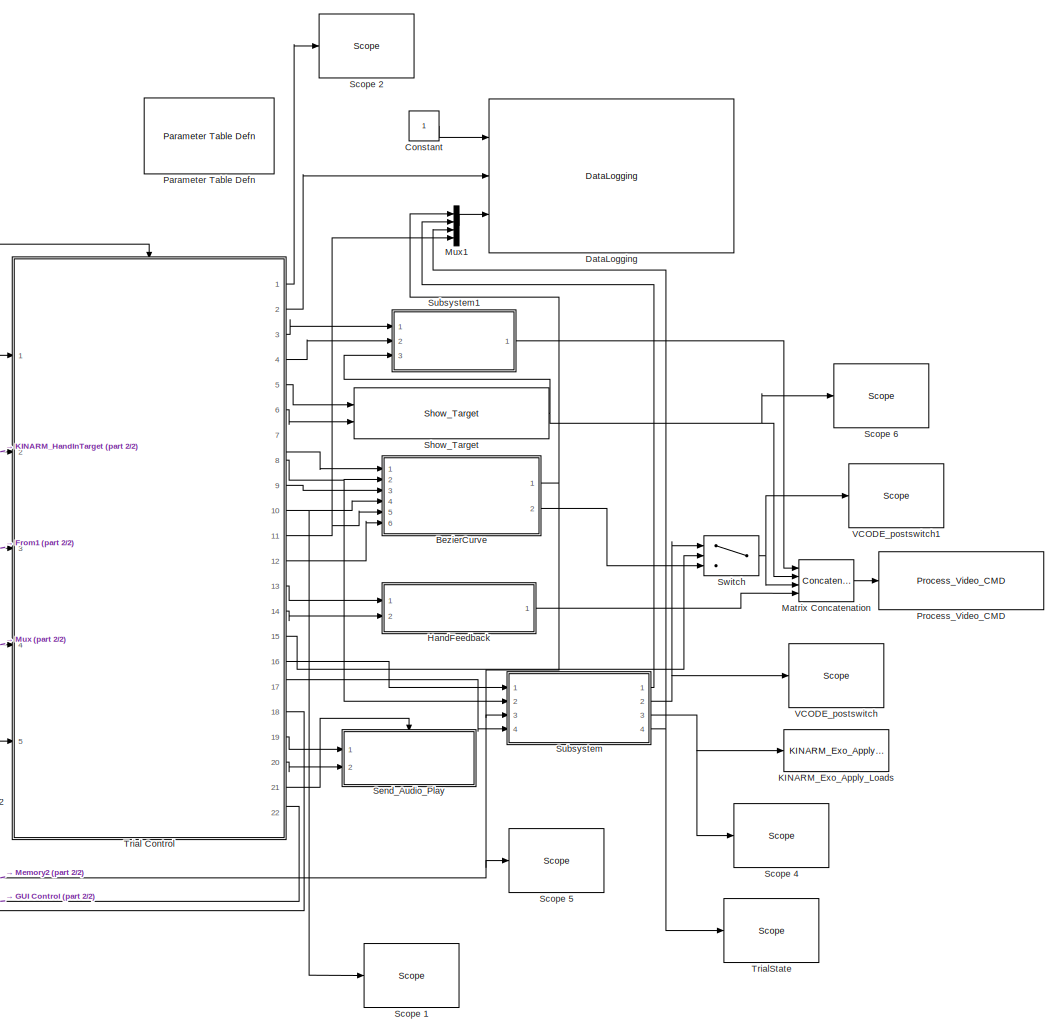
[diagram: root canvas - part 1/2, most of the canvas]
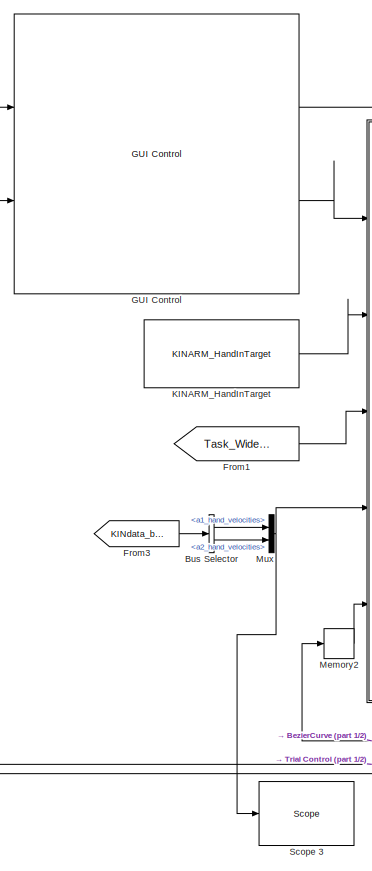
[diagram: root canvas - part 2/2, left side, full height]
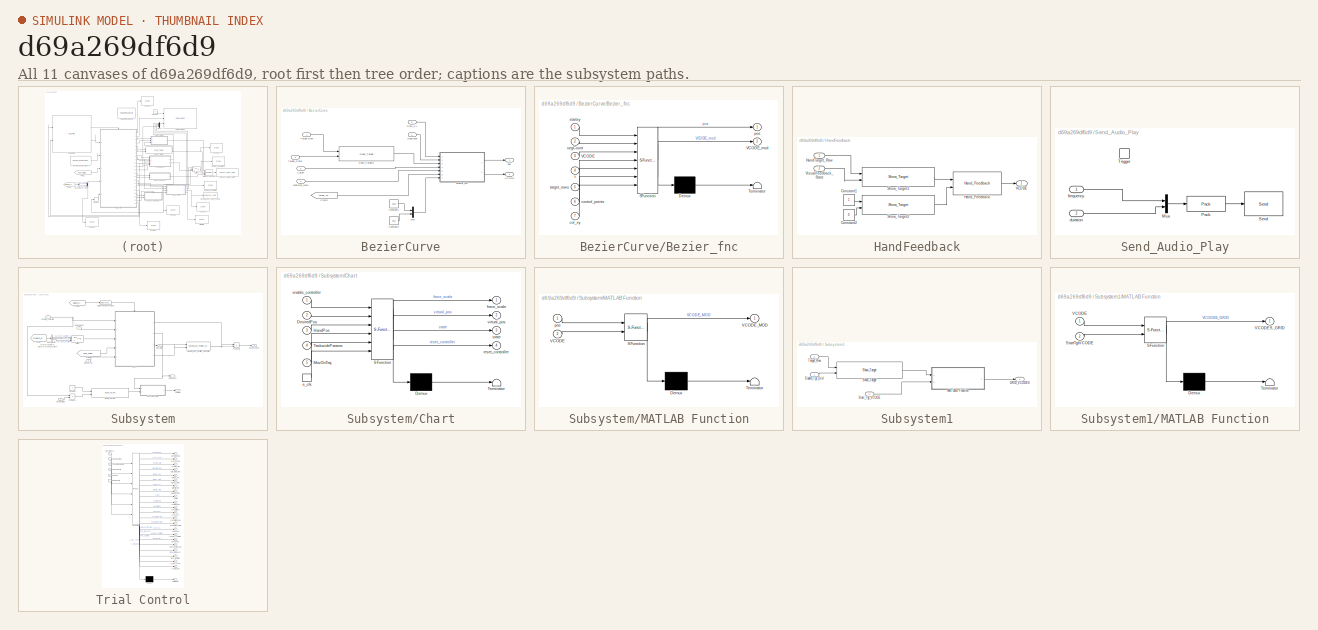
[diagram: thumbnail index - all 11 canvases of the model, root first then tree order]
MODEL slx_d69a269df6d9
KIND model
CONFIG AbsTol = auto
CONFIG FixedStep = BKIN_STEP_TIME
CONFIG MaxStep = auto
CONFIG MinStep = auto
CONFIG RelTol = 1e-3
CONFIG SampleTimeConstraint = Unconstrained
CONFIG Solver = ode4
CONFIG SolverMode = MultiTasking
CONFIG SolverName = ode4
CONFIG StartFcn =  warndlg('Dexterit-E models cannot run under simulation. Please compile your model and run it from within Dexterit-E.');set_param(bdroot,'SimulationCommand','stop')
CONFIG StartTime = 0.0
CONFIG StopTime = inf
WORKSPACE source: MAT-file member
WORKSPACE col_x = 1
BLOCK [SubSystem] BezierCurve
  Ports = [6, 2]
  RequestExecContextInheritance = off
BLOCK [SubSystem] BezierCurve/Bezier_fnc
  ErrorFcn = Stateflow.Translate.translate
  PermitHierarchicalResolution = ExplicitOnly
  Ports = [7, 2]
  RequestExecContextInheritance = off
  SFBlockType = MATLAB Function
  TreatAsAtomicUnit = on
BLOCK [Demux] BezierCurve/Bezier_fnc/ Demux 
  Outputs = 1
  Ports = [1, 1]
BLOCK [S-Function] BezierCurve/Bezier_fnc/ SFunction 
  EnableBusSupport = on
  FunctionName = sf_sfun
  PortCounts = [7 3]
  Ports = [7, 3]
  Tag = Stateflow S-Function Imitation_Task_Multi_withSound_withGrid 3
BLOCK [Terminator] BezierCurve/Bezier_fnc/ Terminator 
BLOCK [Inport] BezierCurve/Bezier_fnc/VCODE
  IconDisplay = Port number
  Port = 3
BLOCK [Outport] BezierCurve/Bezier_fnc/VCODE_mod
  IconDisplay = Port number
  Port = 2
BLOCK [Inport] BezierCurve/Bezier_fnc/col_xy
  IconDisplay = Port number
  Port = 7
BLOCK [Inport] BezierCurve/Bezier_fnc/control_points
  IconDisplay = Port number
  Port = 6
BLOCK [Outport] BezierCurve/Bezier_fnc/pos
  IconDisplay = Port number
BLOCK [Inport] BezierCurve/Bezier_fnc/segCount
  IconDisplay = Port number
  Port = 2
BLOCK [Inport] BezierCurve/Bezier_fnc/startxy
  IconDisplay = Port number
BLOCK [Inport] BezierCurve/Bezier_fnc/t
  IconDisplay = Port number
  Port = 4
BLOCK [Inport] BezierCurve/Bezier_fnc/target_rows
  IconDisplay = Port number
  Port = 5
BLOCK [Constant] BezierCurve/Constant1
  Value = col_x
BLOCK [Constant] BezierCurve/Constant2
  Value = col_y
BLOCK [From] BezierCurve/From2
  GotoTag = Target_Table
  TagVisibility = global
BLOCK [Mux] BezierCurve/Mux
  DisplayOption = bar
  Inputs = 2
  Ports = [2, 1]
BLOCK [Inport] BezierCurve/SegCount
  IconDisplay = Port number
  Port = 6
BLOCK [Reference] BezierCurve/Show_Target3  REF=Video/Show_Target
  Ports = [2, 1]
  SourceBlock = Video/Show_Target
  SourceType = Show_Target
  attribcol1 = [COLOR_INIT 0 0 RADIUS_VIS]
  attribcol2 = [6 6 0 3]
  attribcol3 = [0 0 0 0]
  attribcol4 = [0 0 0 0]
  attribcol5 = [0 0 24 0]
  num_col = 4
  num_states = 1
  opacity = 100
  source = dialog
  stateindices_padding = [0 0 0 0 0 0 0;0 0 0 0 0 0 0;0 0 0 0 0 0 0;0 0 0 0 0 0 0;0 0 0 0 0 0 0]
  target_display = Both subject and operator displays
  target_type = Circle
BLOCK [Inport] BezierCurve/Start_XY
  IconDisplay = Port number
  Port = 5
BLOCK [Inport] BezierCurve/Target_Row
  IconDisplay = Port number
BLOCK [Inport] BezierCurve/Target_State
  IconDisplay = Port number
  Port = 2
BLOCK [Outport] BezierCurve/VCODE
  IconDisplay = Port number
  Port = 2
BLOCK [Inport] BezierCurve/controlpt_rows
  IconDisplay = Port number
  Port = 4
BLOCK [Outport] BezierCurve/pos
  IconDisplay = Port number
BLOCK [Inport] BezierCurve/t_step
  IconDisplay = Port number
  Port = 3
BLOCK [BusSelector] Bus Selector
  OutputSignals = Robot1.a1_hand_velocities,Robot2.a2_hand_velocities
  Ports = [1, 2]
BLOCK [Constant] Constant
BLOCK [Reference] DataLogging  REF=General/DataLogging
  Ports = [3]
  SourceBlock = General/DataLogging
  SourceType = DataLogging
  log_analog_inputs = on
  log_event_codes = on
  show_time_remaining = off
BLOCK [From] From1
  GotoTag = Task_Wide_Parameters
  TagVisibility = global
BLOCK [From] From3
  CloseFcn = tagdialog Close
  GotoTag = KINdata_bus
  TagVisibility = global
BLOCK [Reference] GUI Control  REF=General/GUI Control
  Lcols = 4
  Ports = [2, 2]
  SourceBlock = General/GUI Control
  SourceType = GUI Control
  Target_Type = 1
  Vcols = 3
  XYcols = [1 2]
  indices_padding = [0 0 0 0;0 0 0 0]
  load_table_rows = 20
  show_repeat_trial_flag = on
  target_table_rows = 64
  target_type_str = Circle
  task_version = 1.0
  tp_table_rows = 100
BLOCK [SubSystem] HandFeedback
  Ports = [2, 1]
  RequestExecContextInheritance = off
BLOCK [Constant] HandFeedback/Constant1
BLOCK [Constant] HandFeedback/Constant2
  Value = 0
BLOCK [Inport] HandFeedback/HandTarget_Row
  IconDisplay = Port number
BLOCK [Reference] HandFeedback/Hand_Feedback  REF=KINARM_general/Hand_Feedback
  Ports = [2, 1]
  SourceBlock = KINARM_general/Hand_Feedback
  SourceType = Hand Feedback
  feedback_cntl_src = style and status
BLOCK [Reference] HandFeedback/Show_Target1  REF=Video/Show_Target
  Ports = [2, 1]
  SourceBlock = Video/Show_Target
  SourceType = Show_Target
  attribcol1 = [COLOR_INIT 0 0 RADIUS_VIS]
  attribcol2 = [COLOR_MOVE 0 0 RADIUS_VIS]
  attribcol3 = [0 0 0 0]
  attribcol4 = [0 0 0 0]
  attribcol5 = [0 0 24 0]
  num_col = 4
  num_states = 2
  opacity = 100
  source = dialog
  stateindices_padding = [0 0 0 0 0 0 0;0 0 0 0 0 0 0;0 0 0 0 0 0 0;0 0 0 0 0 0 0;0 0 0 0 0 0 0]
  target_display = Both subject and operator displays
  target_type = Circle
BLOCK [Reference] HandFeedback/Show_Target2  REF=Video/Show_Target
  Ports = [2, 1]
  SourceBlock = Video/Show_Target
  SourceType = Show_Target
  attribcol1 = [COLOR_INIT 0 0 RADIUS_VIS]
  attribcol2 = [COLOR_MOVE 0 0 RADIUS_VIS]
  attribcol3 = [0 0 0 0]
  attribcol4 = [0 0 0 0]
  attribcol5 = [0 0 24 0]
  num_col = 4
  num_states = 2
  opacity = 100
  source = dialog
  stateindices_padding = [0 0 0 0 0 0 0;0 0 0 0 0 0 0;0 0 0 0 0 0 0;0 0 0 0 0 0 0;0 0 0 0 0 0 0]
  target_display = Both subject and operator displays
  target_type = Circle
BLOCK [Outport] HandFeedback/VCODE
  IconDisplay = Port number
BLOCK [Inport] HandFeedback/VisualFeedback_State
  IconDisplay = Port number
  Port = 2
BLOCK [Reference] KINARM_Exo_Apply_Loads  REF=KINARM_loads/KINARM_Exo_Apply_Loads
  Ports = [1]
  SourceBlock = KINARM_loads/KINARM_Exo_Apply_Loads
  SourceType = KINARM_Apply_Loads
  down_duration = 200
  limit_motors = off
  max_torque = 7
  up_duration = 200
BLOCK [Reference] KINARM_HandInTarget  REF=KINARM_general/KINARM_HandInTarget
  Ports = [0, 1]
  SourceBlock = KINARM_general/KINARM_HandInTarget
  SourceType = KINARM_HandInTarget
  attribcol1 = [RADIUS_VIS]
  attribcol2 = [4]
  attribcol3 = [5]
  attribcol4 = [6]
  attribcol5 = [0]
  num_states = 1
  target_type = Circle
  use_dominant_hand = on
BLOCK [Concatenate] Matrix Concatenation
  Mode = Multidimensional array
  NumInputs = 4
  Ports = [4, 1]
BLOCK [Memory] Memory2
  InheritSampleTime = on
BLOCK [Mux] Mux
  DisplayOption = bar
  Inputs = [2 2]
  Ports = [2, 1]
BLOCK [Mux] Mux1
  DisplayOption = bar
  Ports = [4, 1]
BLOCK [Reference] Parameter Table Defn  REF=General/Parameter Table Defn
  Ports = []
  ShowInLibBrowser = 0
  SourceBlock = General/Parameter Table Defn
  UserDataPersistent = on
BLOCK [Reference] Process_Video_CMD  REF=Video/Process_Video_CMD
  Ports = [1]
  SourceBlock = Video/Process_Video_CMD
  SourceType = Process_Video_CMD
  video_delay = 50
BLOCK [Reference] Scope 1  REF=slrtlib/Displays and
Logging/Scope 
  Ports = [1]
  SourceBlock = slrtlib/Displays and\nLogging/Scope
  SourceType = xpcscopeblock
  autorestart = off
  autostart = on
  dynamicfilemode = off
  filename = data.dat
  formatstr = '%15.6f'
  grid = on
  interleave = 1
  maxwritefilesize = 512*1024^2
  mode = Lazy
  noprepostsamples = 0
  nosamples = 250
  scopeno = 2
  scopetype = Target
  triggerlevel = 0.0
  triggermode = FreeRun
  triggersample = 0
  triggerscope = 1
  triggersignal = 1
  triggerslope = Either
  trigsignalfromport = off
  viewmode = Numerical
  writesize = 512
  ylimits = [0,0]
BLOCK [Reference] Scope 2  REF=slrtlib/Displays and
Logging/Scope 
  Ports = [1]
  SourceBlock = slrtlib/Displays and\nLogging/Scope
  SourceType = xpcscopeblock
  autorestart = off
  autostart = on
  dynamicfilemode = off
  filename = data.dat
  formatstr = '%15.6f'
  grid = on
  interleave = 1
  maxwritefilesize = 512*1024^2
  mode = Lazy
  noprepostsamples = 0
  nosamples = 250
  scopeno = 3
  scopetype = Target
  triggerlevel = 0.0
  triggermode = FreeRun
  triggersample = 0
  triggerscope = 1
  triggersignal = 1
  triggerslope = Either
  trigsignalfromport = off
  viewmode = Numerical
  writesize = 512
  ylimits = [0,0]
BLOCK [Reference] Scope 3  REF=slrtlib/Displays and
Logging/Scope 
  Ports = [1]
  SourceBlock = slrtlib/Displays and\nLogging/Scope
  SourceType = xpcscopeblock
  autorestart = off
  autostart = on
  dynamicfilemode = off
  filename = data.dat
  formatstr = '%15.6f'
  grid = on
  interleave = 1
  maxwritefilesize = 512*1024^2
  mode = Lazy
  noprepostsamples = 0
  nosamples = 250
  scopeno = 4
  scopetype = Target
  triggerlevel = 0.0
  triggermode = FreeRun
  triggersample = 0
  triggerscope = 1
  triggersignal = 1
  triggerslope = Either
  trigsignalfromport = off
  viewmode = Numerical
  writesize = 512
  ylimits = [0,0]
BLOCK [Reference] Scope 4  REF=slrtlib/Displays and
Logging/Scope 
  Ports = [1]
  SourceBlock = slrtlib/Displays and\nLogging/Scope
  SourceType = xpcscopeblock
  autorestart = off
  autostart = on
  dynamicfilemode = off
  filename = data.dat
  formatstr = '%15.6f'
  grid = on
  interleave = 1
  maxwritefilesize = 512*1024^2
  mode = Lazy
  noprepostsamples = 0
  nosamples = 250
  scopeno = 5
  scopetype = Target
  triggerlevel = 0.0
  triggermode = FreeRun
  triggersample = 0
  triggerscope = 1
  triggersignal = 1
  triggerslope = Either
  trigsignalfromport = off
  viewmode = Numerical
  writesize = 512
  ylimits = [0,0]
BLOCK [Reference] Scope 5  REF=slrtlib/Displays and
Logging/Scope 
  Ports = [1]
  SourceBlock = slrtlib/Displays and\nLogging/Scope
  SourceType = xpcscopeblock
  autorestart = off
  autostart = on
  dynamicfilemode = off
  filename = data.dat
  formatstr = '%15.6f'
  grid = on
  interleave = 1
  maxwritefilesize = 512*1024^2
  mode = Lazy
  noprepostsamples = 0
  nosamples = 250
  scopeno = 7
  scopetype = Target
  triggerlevel = 0.0
  triggermode = FreeRun
  triggersample = 0
  triggerscope = 1
  triggersignal = 1
  triggerslope = Either
  trigsignalfromport = off
  viewmode = Numerical
  writesize = 512
  ylimits = [0,0]
BLOCK [Reference] Scope 6  REF=slrtlib/Displays and
Logging/Scope 
  Ports = [1]
  SourceBlock = slrtlib/Displays and\nLogging/Scope
  SourceType = xpcscopeblock
  autorestart = off
  autostart = on
  dynamicfilemode = off
  filename = data.dat
  formatstr = '%15.6f'
  grid = on
  interleave = 1
  maxwritefilesize = 512*1024^2
  mode = Lazy
  noprepostsamples = 0
  nosamples = 250
  scopeno = 9
  scopetype = Target
  triggerlevel = 0.0
  triggermode = FreeRun
  triggersample = 0
  triggerscope = 1
  triggersignal = 1
  triggerslope = Either
  trigsignalfromport = off
  viewmode = Numerical
  writesize = 512
  ylimits = [0,0]
BLOCK [SubSystem] Send_Audio_Play
  AncestorBlock = General/DataLogging/Network Transfer Subsystem/UDP Send Subsystem
  Ports = [2, 0, 0, 1]
  RequestExecContextInheritance = off
  TreatAsAtomicUnit = on
BLOCK [Mux] Send_Audio_Play/Mux
  DisplayOption = bar
  Inputs = 2
  Ports = [2, 1]
BLOCK [Reference] Send_Audio_Play/Pack  REF=xpcobsoletelib/Utilities/Pack 
  Ports = [1, 1]
  SourceBlock = xpcobsoletelib/Utilities/Pack
  SourceType = xpcany2byte
  byteAlign = 1
  datatypes = {'int32'}
BLOCK [Reference] Send_Audio_Play/Send  REF=xpcrtudplib/Legacy UDP/Send 
  Ports = [1]
  SourceBlock = xpcrtudplib/Legacy UDP/Send
  SourceType = xpcudpbytesend
  ipAddress = 255.255.255.255
  ipPort = 25255
  localPort = -1
  sampletime = -1
  vblLen = off
BLOCK [TriggerPort] Send_Audio_Play/Trigger
  Ports = []
  TriggerType = either
BLOCK [Inport] Send_Audio_Play/duration
  IconDisplay = Port number
  Port = 2
BLOCK [Inport] Send_Audio_Play/frequency
  IconDisplay = Port number
BLOCK [Reference] Show_Target  REF=Video/Show_Target
  Ports = [2, 1]
  SourceBlock = Video/Show_Target
  SourceType = Show_Target
  attribcol1 = [0 COLOR_INIT STROKE_WIDTH RADIUS_VIS RADIUS_VIS 0]
  attribcol2 = [6 6 0 3 0 0]
  attribcol3 = [0 0 0 0 0 0]
  attribcol4 = [0 0 0 0 0 0]
  attribcol5 = [0 0 24 0 0 0]
  num_col = 6
  num_states = 1
  opacity = 100
  source = dialog
  stateindices_padding = [0 0 0 0 0;0 0 0 0 0;0 0 0 0 0;0 0 0 0 0;0 0 0 0 0]
  target_display = Both subject and operator displays
  target_type = Rectangle
BLOCK [SubSystem] Subsystem
  Ports = [4, 4]
  RequestExecContextInheritance = off
BLOCK [BusSelector] Subsystem/Bus Selector
  OutputSignals = Robot2.a2_hand_position,KINDataGeneral.active_arm,Robot1.a1_hand_position
  Ports = [1, 3]
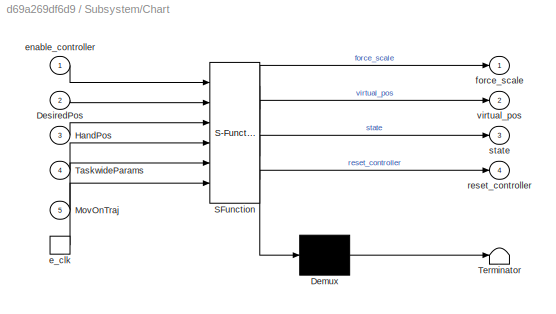
BLOCK [SubSystem] Subsystem/Chart
  ErrorFcn = Stateflow.Translate.translate
  PermitHierarchicalResolution = ExplicitOnly
  Ports = [5, 4, 0, 1]
  RequestExecContextInheritance = off
  SFBlockType = Chart
  TreatAsAtomicUnit = on
BLOCK [Demux] Subsystem/Chart/ Demux 
  Outputs = 1
  Ports = [1, 1]
BLOCK [S-Function] Subsystem/Chart/ SFunction 
  EnableBusSupport = on
  FunctionName = sf_sfun
  PortCounts = [6 5]
  Ports = [6, 5]
  Tag = Stateflow S-Function Imitation_Task_Multi_withSound_withGrid 1
BLOCK [Terminator] Subsystem/Chart/ Terminator 
BLOCK [Inport] Subsystem/Chart/DesiredPos
  IconDisplay = Port number
  Port = 2
BLOCK [Inport] Subsystem/Chart/HandPos
  IconDisplay = Port number
  Port = 3
BLOCK [Inport] Subsystem/Chart/MovOnTraj
  IconDisplay = Port number
  Port = 5
BLOCK [Inport] Subsystem/Chart/TaskwideParams
  IconDisplay = Port number
  Port = 4
BLOCK [TriggerPort] Subsystem/Chart/e_clk
  Ports = [0, 1]
  ShowOutputPort = on
  StatesWhenEnabling = held
  TriggerType = either
BLOCK [Inport] Subsystem/Chart/enable_controller
  IconDisplay = Port number
BLOCK [Outport] Subsystem/Chart/force_scale
  IconDisplay = Port number
BLOCK [Outport] Subsystem/Chart/reset_controller
  IconDisplay = Port number
  Port = 4
BLOCK [Outport] Subsystem/Chart/state
  IconDisplay = Port number
  Port = 3
BLOCK [Outport] Subsystem/Chart/virtual_pos
  IconDisplay = Port number
  Port = 2
BLOCK [Constant] Subsystem/Constant
  Value = 2
BLOCK [DataTypeConversion] Subsystem/Data Type Conversion2
  RndMeth = Floor
  SaturateOnIntegerOverflow = off
BLOCK [Outport] Subsystem/EXO Torques
  IconDisplay = Port number
  Port = 3
BLOCK [From] Subsystem/From
  GotoTag = KINdata_bus
  TagVisibility = global
BLOCK [From] Subsystem/From1
  GotoTag = Task_Wide_Parameters
  TagVisibility = global
BLOCK [From] Subsystem/From4
  CloseFcn = tagdialog Close
  GotoTag = global_clock
  TagVisibility = global
BLOCK [Reference] Subsystem/KINARM_Exo_Position_Controller  REF=KINARM_loads/KINARM_Exo_Position_Controller
  KINARM_Type = Human
  Ports = [2, 1]
  SourceBlock = KINARM_loads/KINARM_Exo_Position_Controller
  angles_or_XY = End-point (global x/y)
  inertias_for_FF = KINARM robot & arm troughs & subject
  sample_time = 0.001
  use_dom_hand = on
BLOCK [SubSystem] Subsystem/MATLAB Function
  ErrorFcn = Stateflow.Translate.translate
  PermitHierarchicalResolution = ExplicitOnly
  Ports = [2, 1]
  RequestExecContextInheritance = off
  SFBlockType = MATLAB Function
  TreatAsAtomicUnit = on
BLOCK [Demux] Subsystem/MATLAB Function/ Demux 
  Outputs = 1
  Ports = [1, 1]
BLOCK [S-Function] Subsystem/MATLAB Function/ SFunction 
  EnableBusSupport = on
  FunctionName = sf_sfun
  PortCounts = [2 2]
  Ports = [2, 2]
  Tag = Stateflow S-Function Imitation_Task_Multi_withSound_withGrid 4
BLOCK [Terminator] Subsystem/MATLAB Function/ Terminator 
BLOCK [Inport] Subsystem/MATLAB Function/VCODE
  IconDisplay = Port number
  Port = 2
BLOCK [Outport] Subsystem/MATLAB Function/VCODE_MOD
  IconDisplay = Port number
BLOCK [Inport] Subsystem/MATLAB Function/pos
  IconDisplay = Port number
BLOCK [Inport] Subsystem/MovOnTraj
  IconDisplay = Port number
  Port = 4
BLOCK [Product] Subsystem/Product
  InputSameDT = off
  OutDataTypeStr = Inherit: Inherit via internal rule
  Ports = [2, 1]
  RndMeth = Floor
  SaturateOnIntegerOverflow = off
BLOCK [Product] Subsystem/Product2
  InputSameDT = off
  OutDataTypeStr = Inherit: Inherit via internal rule
  Ports = [2, 1]
  RndMeth = Floor
  SaturateOnIntegerOverflow = off
BLOCK [Reference] Subsystem/Show_Target  REF=Video/Show_Target
  Ports = [2, 1]
  SourceBlock = Video/Show_Target
  SourceType = Show_Target
  attribcol1 = [COLOR_INIT 0 0 RADIUS_VIS]
  attribcol2 = [6 6 0 3]
  attribcol3 = [0 0 0 0]
  attribcol4 = [0 0 0 0]
  attribcol5 = [0 0 24 0]
  num_col = 4
  num_states = 1
  opacity = 100
  source = dialog
  stateindices_padding = [0 0 0 0 0 0 0;0 0 0 0 0 0 0;0 0 0 0 0 0 0;0 0 0 0 0 0 0;0 0 0 0 0 0 0]
  target_display = Both subject and operator displays
  target_type = Circle
BLOCK [Switch] Subsystem/Switch
  Criteria = u2 > Threshold
  InputSameDT = off
  SaturateOnIntegerOverflow = off
  Threshold = 1.5
BLOCK [Outport] Subsystem/VCODE
  IconDisplay = Port number
  Port = 2
BLOCK [Inport] Subsystem/desiredpos
  IconDisplay = Port number
  Port = 3
BLOCK [Inport] Subsystem/enable_controller
  IconDisplay = Port number
BLOCK [Inport] Subsystem/target_state
  IconDisplay = Port number
  Port = 2
BLOCK [Outport] Subsystem/trial_state
  IconDisplay = Port number
  Port = 4
BLOCK [Outport] Subsystem/virtual_pos
  IconDisplay = Port number
BLOCK [SubSystem] Subsystem1
  Ports = [3, 1]
  RequestExecContextInheritance = off
BLOCK [Inport] Subsystem1/Enable_Tgt_Grid
  IconDisplay = Port number
BLOCK [Outport] Subsystem1/GRID_VCODES
  IconDisplay = Port number
BLOCK [SubSystem] Subsystem1/MATLAB Function
  ErrorFcn = Stateflow.Translate.translate
  PermitHierarchicalResolution = ExplicitOnly
  Ports = [2, 1]
  RequestExecContextInheritance = off
  SFBlockType = MATLAB Function
  TreatAsAtomicUnit = on
BLOCK [Demux] Subsystem1/MATLAB Function/ Demux 
  Outputs = 1
  Ports = [1, 1]
BLOCK [S-Function] Subsystem1/MATLAB Function/ SFunction 
  EnableBusSupport = on
  FunctionName = sf_sfun
  PortCounts = [2 2]
  Ports = [2, 2]
  Tag = Stateflow S-Function Imitation_Task_Multi_withSound_withGrid 5
BLOCK [Terminator] Subsystem1/MATLAB Function/ Terminator 
BLOCK [Inport] Subsystem1/MATLAB Function/StartTgtVCODE
  IconDisplay = Port number
  Port = 2
BLOCK [Inport] Subsystem1/MATLAB Function/VCODE
  IconDisplay = Port number
BLOCK [Outport] Subsystem1/MATLAB Function/VCODES_GRID
  IconDisplay = Port number
BLOCK [Reference] Subsystem1/Show_Target  REF=Video/Show_Target
  Ports = [2, 1]
  SourceBlock = Video/Show_Target
  SourceType = Show_Target
  attribcol1 = [COLOR_INIT 0 0 RADIUS_VIS]
  attribcol2 = [6 6 0 3]
  attribcol3 = [0 0 0 0]
  attribcol4 = [0 0 0 0]
  attribcol5 = [0 0 24 0]
  num_col = 4
  num_states = 1
  opacity = 100
  source = dialog
  stateindices_padding = [0 0 0 0 0 0 0;0 0 0 0 0 0 0;0 0 0 0 0 0 0;0 0 0 0 0 0 0;0 0 0 0 0 0 0]
  target_display = Both subject and operator displays
  target_type = Circle
BLOCK [Inport] Subsystem1/Start_Tgt_VCODE
  IconDisplay = Port number
  Port = 3
BLOCK [Inport] Subsystem1/Target_Row
  IconDisplay = Port number
  Port = 2
BLOCK [Switch] Switch
  Criteria = u2 > Threshold
  InputSameDT = off
  SaturateOnIntegerOverflow = off
  Threshold = 0.5
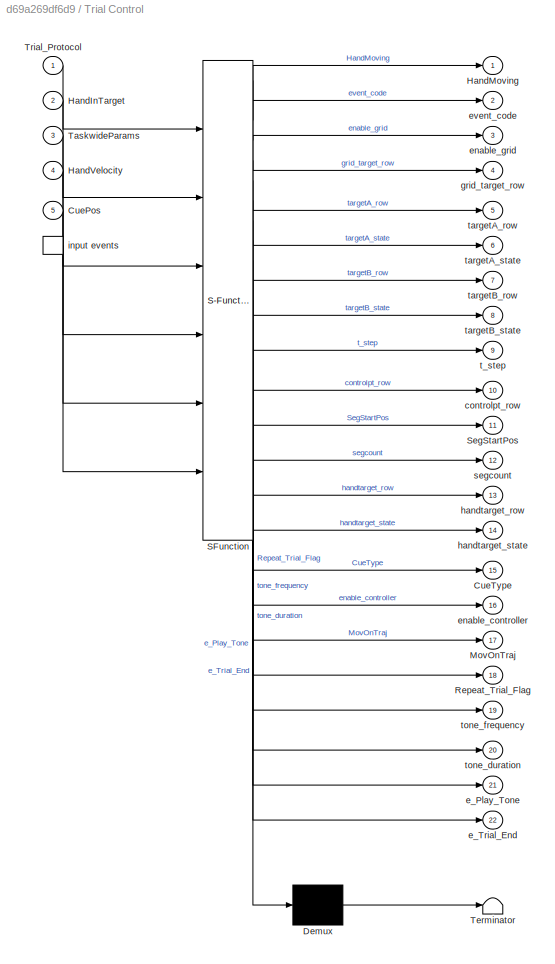
BLOCK [SubSystem] Trial Control
  ErrorFcn = Stateflow.Translate.translate
  PermitHierarchicalResolution = ExplicitOnly
  Ports = [5, 22, 0, 1]
  RequestExecContextInheritance = off
  SFBlockType = Chart
  TreatAsAtomicUnit = on
BLOCK [Demux] Trial Control/ Demux 
  Outputs = 1
  Ports = [1, 1]
BLOCK [S-Function] Trial Control/ SFunction 
  EnableBusSupport = on
  FunctionName = sf_sfun
  PortCounts = [6 23]
  Ports = [6, 23]
  Tag = Stateflow S-Function Imitation_Task_Multi_withSound_withGrid 2
BLOCK [Terminator] Trial Control/ Terminator 
BLOCK [TriggerPort] Trial Control/ input events 
  Ports = [0, 1]
  ShowOutputPort = on
  TriggerType = either
BLOCK [Inport] Trial Control/CuePos
  IconDisplay = Port number
  Port = 5
BLOCK [Outport] Trial Control/CueType
  IconDisplay = Port number
  Port = 15
BLOCK [Inport] Trial Control/HandInTarget
  IconDisplay = Port number
  Port = 2
BLOCK [Outport] Trial Control/HandMoving
  IconDisplay = Port number
BLOCK [Inport] Trial Control/HandVelocity
  IconDisplay = Port number
  Port = 4
BLOCK [Outport] Trial Control/MovOnTraj
  IconDisplay = Port number
  Port = 17
BLOCK [Outport] Trial Control/Repeat_Trial_Flag
  IconDisplay = Port number
  Port = 18
BLOCK [Outport] Trial Control/SegStartPos
  IconDisplay = Port number
  Port = 11
BLOCK [Inport] Trial Control/TaskwideParams
  IconDisplay = Port number
  Port = 3
BLOCK [Inport] Trial Control/Trial_Protocol
  IconDisplay = Port number
BLOCK [Outport] Trial Control/controlpt_row
  IconDisplay = Port number
  Port = 10
BLOCK [Outport] Trial Control/e_Play_Tone
  IconDisplay = Port number
  Port = 21
BLOCK [Outport] Trial Control/e_Trial_End
  IconDisplay = Port number
  Port = 22
BLOCK [Outport] Trial Control/enable_controller
  IconDisplay = Port number
  Port = 16
BLOCK [Outport] Trial Control/enable_grid
  IconDisplay = Port number
  Port = 3
BLOCK [Outport] Trial Control/event_code
  IconDisplay = Port number
  Port = 2
BLOCK [Outport] Trial Control/grid_target_row
  IconDisplay = Port number
  Port = 4
BLOCK [Outport] Trial Control/handtarget_row
  IconDisplay = Port number
  Port = 13
BLOCK [Outport] Trial Control/handtarget_state
  IconDisplay = Port number
  Port = 14
BLOCK [Outport] Trial Control/segcount
  IconDisplay = Port number
  Port = 12
BLOCK [Outport] Trial Control/t_step
  IconDisplay = Port number
  Port = 9
BLOCK [Outport] Trial Control/targetA_row
  IconDisplay = Port number
  Port = 5
BLOCK [Outport] Trial Control/targetA_state
  IconDisplay = Port number
  Port = 6
BLOCK [Outport] Trial Control/targetB_row
  IconDisplay = Port number
  Port = 7
BLOCK [Outport] Trial Control/targetB_state
  IconDisplay = Port number
  Port = 8
BLOCK [Outport] Trial Control/tone_duration
  IconDisplay = Port number
  Port = 20
BLOCK [Outport] Trial Control/tone_frequency
  IconDisplay = Port number
  Port = 19
BLOCK [Reference] TrialState  REF=slrtlib/Displays and
Logging/Scope 
  Ports = [1]
  SourceBlock = slrtlib/Displays and\nLogging/Scope
  SourceType = xpcscopeblock
  autorestart = off
  autostart = on
  dynamicfilemode = off
  filename = data.dat
  formatstr = '%15.6f'
  grid = on
  interleave = 1
  maxwritefilesize = 512*1024^2
  mode = Lazy
  noprepostsamples = 0
  nosamples = 250
  scopeno = 1
  scopetype = Target
  triggerlevel = 0.0
  triggermode = FreeRun
  triggersample = 0
  triggerscope = 1
  triggersignal = 1
  triggerslope = Either
  trigsignalfromport = off
  viewmode = Numerical
  writesize = 512
  ylimits = [0,0]
BLOCK [Reference] VCODE_postswitch  REF=slrtlib/Displays and
Logging/Scope 
  Ports = [1]
  SourceBlock = slrtlib/Displays and\nLogging/Scope
  SourceType = xpcscopeblock
  autorestart = off
  autostart = on
  dynamicfilemode = off
  filename = data.dat
  formatstr = '%15.6f'
  grid = on
  interleave = 1
  maxwritefilesize = 512*1024^2
  mode = Lazy
  noprepostsamples = 0
  nosamples = 250
  scopeno = 6
  scopetype = Target
  triggerlevel = 0.0
  triggermode = FreeRun
  triggersample = 0
  triggerscope = 1
  triggersignal = 1
  triggerslope = Either
  trigsignalfromport = off
  viewmode = Numerical
  writesize = 512
  ylimits = [0,0]
BLOCK [Reference] VCODE_postswitch1  REF=slrtlib/Displays and
Logging/Scope 
  Ports = [1]
  SourceBlock = slrtlib/Displays and\nLogging/Scope
  SourceType = xpcscopeblock
  autorestart = off
  autostart = on
  dynamicfilemode = off
  filename = data.dat
  formatstr = '%15.6f'
  grid = on
  interleave = 1
  maxwritefilesize = 512*1024^2
  mode = Lazy
  noprepostsamples = 0
  nosamples = 250
  scopeno = 8
  scopetype = Target
  triggerlevel = 0.0
  triggermode = FreeRun
  triggersample = 0
  triggerscope = 1
  triggersignal = 1
  triggerslope = Either
  trigsignalfromport = off
  viewmode = Numerical
  writesize = 512
  ylimits = [0,0]
ANNOTATION Subsystem: 1 is right arm, 2 is left arm Switch passes the top input if true
LINE BezierCurve/Bezier_fnc:1 -> BezierCurve/pos:1
LINE BezierCurve/Bezier_fnc:2 -> BezierCurve/VCODE:1
LINE BezierCurve/Constant1:1 -> BezierCurve/Mux:1
LINE BezierCurve/Constant2:1 -> BezierCurve/Mux:2
LINE BezierCurve/From2:1 -> BezierCurve/Bezier_fnc:6
LINE BezierCurve/Mux:1 -> BezierCurve/Bezier_fnc:7
LINE BezierCurve/SegCount:1 -> BezierCurve/Bezier_fnc:2
LINE BezierCurve/Show_Target3:1 -> BezierCurve/Bezier_fnc:3
LINE BezierCurve/Start_XY:1 -> BezierCurve/Bezier_fnc:1
LINE BezierCurve/Target_Row:1 -> BezierCurve/Show_Target3:1
LINE BezierCurve/Target_State:1 -> BezierCurve/Show_Target3:2
LINE BezierCurve/controlpt_rows:1 -> BezierCurve/Bezier_fnc:5
LINE BezierCurve/t_step:1 -> BezierCurve/Bezier_fnc:4
NET BezierCurve:1 -> Memory2:1, Mux1:1, Scope 5:1, Subsystem:3
LINE BezierCurve:2 -> Switch:3
LINE Bus Selector:1 -> Mux:1
LINE Bus Selector:2 -> Mux:2
LINE Constant:1 -> DataLogging:1
LINE From1:1 -> Trial Control:3
LINE From3:1 -> Bus Selector:1
LINE GUI Control:1 -> Trial Control:trigger
LINE GUI Control:2 -> Trial Control:1
LINE HandFeedback/Constant1:1 -> HandFeedback/Show_Target2:1
LINE HandFeedback/Constant2:1 -> HandFeedback/Show_Target2:2
LINE HandFeedback/HandTarget_Row:1 -> HandFeedback/Show_Target1:1
LINE HandFeedback/Hand_Feedback:1 -> HandFeedback/VCODE:1
LINE HandFeedback/Show_Target1:1 -> HandFeedback/Hand_Feedback:1
LINE HandFeedback/Show_Target2:1 -> HandFeedback/Hand_Feedback:2
LINE HandFeedback/VisualFeedback_State:1 -> HandFeedback/Show_Target1:2
LINE HandFeedback:1 -> Matrix Concatenation:4
LINE KINARM_HandInTarget:1 -> Trial Control:2
LINE Matrix Concatenation:1 -> Process_Video_CMD:1
LINE Memory2:1 -> Trial Control:5
LINE Mux1:1 -> DataLogging:3
NET Mux:1 -> Scope 3:1, Trial Control:4
NET Show_Target:1 -> Matrix Concatenation:2, Scope 6:1, Subsystem1:3
LINE Subsystem/Bus Selector:1 -> Subsystem/Switch:1
LINE Subsystem/Bus Selector:2 -> Subsystem/Switch:2
LINE Subsystem/Bus Selector:3 -> Subsystem/Switch:3
LINE Subsystem/Chart:1 -> Subsystem/Product2:1
NET Subsystem/Chart:2 -> Subsystem/KINARM_Exo_Position_Controller:1, Subsystem/MATLAB Function:1, Subsystem/virtual_pos:1
LINE Subsystem/Chart:3 -> Subsystem/trial_state:1
LINE Subsystem/Chart:4 -> Subsystem/KINARM_Exo_Position_Controller:2
LINE Subsystem/Constant:1 -> Subsystem/Show_Target:1
LINE Subsystem/Data Type Conversion2:1 -> Subsystem/Chart:trigger
LINE Subsystem/From1:1 -> Subsystem/Chart:4
LINE Subsystem/From4:1 -> Subsystem/Data Type Conversion2:1
LINE Subsystem/From:1 -> Subsystem/Bus Selector:1
LINE Subsystem/KINARM_Exo_Position_Controller:1 -> Subsystem/Product2:2
LINE Subsystem/MATLAB Function:1 -> Subsystem/VCODE:1
LINE Subsystem/MovOnTraj:1 -> Subsystem/Chart:5
LINE Subsystem/Product2:1 -> Subsystem/EXO Torques:1
LINE Subsystem/Product:1 -> Subsystem/Show_Target:2
LINE Subsystem/Show_Target:1 -> Subsystem/MATLAB Function:2
LINE Subsystem/Switch:1 -> Subsystem/Chart:3
LINE Subsystem/desiredpos:1 -> Subsystem/Chart:2
NET Subsystem/enable_controller:1 -> Subsystem/Chart:1, Subsystem/Product:1
LINE Subsystem/target_state:1 -> Subsystem/Product:2
LINE Subsystem1/Enable_Tgt_Grid:1 -> Subsystem1/Show_Target:2
LINE Subsystem1/MATLAB Function:1 -> Subsystem1/GRID_VCODES:1
LINE Subsystem1/Show_Target:1 -> Subsystem1/MATLAB Function:1
LINE Subsystem1/Start_Tgt_VCODE:1 -> Subsystem1/MATLAB Function:2
LINE Subsystem1/Target_Row:1 -> Subsystem1/Show_Target:1
LINE Subsystem1:1 -> Matrix Concatenation:1
LINE Subsystem:1 -> Mux1:2
NET Subsystem:2 -> Switch:1, VCODE_postswitch:1
NET Subsystem:3 -> KINARM_Exo_Apply_Loads:1, Scope 4:1
NET Subsystem:4 -> Mux1:3, TrialState:1
NET Switch:1 -> Matrix Concatenation:3, VCODE_postswitch1:1
LINE Trial Control:1 -> Scope 2:1
NET Trial Control:10 -> BezierCurve:4, Scope 1:1
NET Trial Control:11 -> BezierCurve:5, Mux1:4
LINE Trial Control:12 -> BezierCurve:6
LINE Trial Control:13 -> HandFeedback:1
LINE Trial Control:14 -> HandFeedback:2
LINE Trial Control:15 -> Switch:2
LINE Trial Control:16 -> Subsystem:1
LINE Trial Control:17 -> Subsystem:4
LINE Trial Control:18 -> GUI Control:1
LINE Trial Control:19 -> Send_Audio_Play:1
LINE Trial Control:2 -> DataLogging:2
LINE Trial Control:20 -> Send_Audio_Play:2
LINE Trial Control:21 -> Send_Audio_Play:trigger
LINE Trial Control:22 -> GUI Control:2
LINE Trial Control:3 -> Subsystem1:1
LINE Trial Control:4 -> Subsystem1:2
LINE Trial Control:5 -> Show_Target:1
LINE Trial Control:6 -> Show_Target:2
LINE Trial Control:7 -> BezierCurve:1
NET Trial Control:8 -> BezierCurve:2, Subsystem:2
LINE Trial Control:9 -> BezierCurve:3
note: NET lines group one-source signal fan-out (src -> all destinations, sorted); 1:1 wires keep LINE
CHART Subsystem/Chart states=12 transitions=18
  STATE_LABEL 'EnableState/'
  STATE_LABEL 'AutoMoveToPos/\n//smoothly creates a trajectory to get the hand to a point eventually'
  STATE_LABEL 'MovingToDesiredXY/\ntickCount = TaskwideParams[K_TIME_TO_START];\nstate = 11;\ntick = 0;\n\nduring:\non e_clk: tick++;\n// the trajectory velocity will have a bell shaped profile\ntrajectory_shape = tick/tickCount-sin(2*pi*tick/tickCount)/(2*pi);\nvirtual_pos[1] = StartPos[1] + (TgtPos[1] - StartPos[1]) * trajectory_shape;\nvirtual_pos[2] = StartPos[2] + (TgtPos[2] - StartPos[2]) * trajectory_shape;'  <repeated x3 — deduplicated; at blocks: Chart>
  STATE_LABEL 'GetDesiredXY/\n//grab the current desired pos in case it changes\nTgtPos[1] = DesiredPos[1];\nTgtPos[2] = DesiredPos[2];\nStartPos[1] = HandPos[1];\nStartPos[2] = HandPos[2];\nupdatepos = 0;\nstate = 10;'  <repeated x3 — deduplicated; at blocks: Chart>
  STATE_LABEL 'HoldAtDesiredXY/\n//pause until something changes\nstate = 12;\nupdatepos = 0;\n\nduring:\non e_clk: updatepos = ( (abs(TgtPos[1]-DesiredPos[1]) > 0.01) || (abs(TgtPos[2]-DesiredPos[2]) > 0.01) )\n'  <repeated x3 — deduplicated; at blocks: Chart>
  STATE_LABEL 'after(1, e_clk)'
  STATE_LABEL '[updatepos == 1 && MovOnTraj == 0]'
  STATE_LABEL 'after(tickCount, e_clk)/'
  STATE_LABEL 'MoveAlongTraj/\n//take a step along a trajectory specified externally'
  STATE_LABEL 'GetDesiredXY_Traj/\nTgtPos[1] = DesiredPos[1];\nTgtPos[2] = DesiredPos[2];\nStartPos[1] = HandPos[1];\nStartPos[2] = HandPos[2];\nstate = 21;\n\n//movIsSafe = ( (abs(TgtPos[1]-HandPos[1]) < 0.02) || (abs(TgtPos[2]-HandPos[2]) < 0.02) );\nmovIsSafe = 1;\n'  <repeated x3 — deduplicated; at blocks: Chart>
  STATE_LABEL 'MovAlongTraj/\nstate = 22;\n\nvirtual_pos[1] = DesiredPos[1];\nvirtual_pos[2] = DesiredPos[2];'
  STATE_LABEL '[movIsSafe == 1]'
  STATE_LABEL '[MovOnTraj == 0]'
  STATE_LABEL '[MovOnTraj == 1]'
  STATE_LABEL '[MovOnTraj == 0]'
  STATE_LABEL '[movIsSafe == 0]'
  STATE_LABEL '[MovOnTraj == 1]'
  STATE_LABEL 'AutoMoveToPos/\n//smoothly creates a trajectory to get the hand to a point eventually'
  STATE_LABEL 'after(1, e_clk)'
  STATE_LABEL '[updatepos == 1 && MovOnTraj == 0]'
  STATE_LABEL 'after(tickCount, e_clk)/'
  STATE_LABEL 'MoveAlongTraj/\n//take a step along a trajectory specified externally'
  STATE_LABEL 'MovAlongTraj/\nstate = 22;\n\nvirtual_pos[1] = DesiredPos[1];\nvirtual_pos[2] = DesiredPos[2];'
  STATE_LABEL '[movIsSafe == 1]'
  STATE_LABEL 'MovAlongTraj/\nstate = 22;\n\nvirtual_pos[1] = DesiredPos[1];\nvirtual_pos[2] = DesiredPos[2];'
  STATE_LABEL 'Init/\nramp_time = TaskwideParams[K_ROBOT_RAMP_TIME];\nscale_increment = 1/ramp_time;\nforce_scale = 0;\nstate = 1;\n\nduring:\nCurHandPos[1] = HandPos[1];\nCurHandPos[2] = HandPos[2];\n\n'
  STATE_LABEL 'RampUp/\n//ramp up the force scale to 1\nCurHandPos[1] = HandPos[1];\nCurHandPos[2] = HandPos[2];\nvirtual_pos[1] = HandPos[1];\nvirtual_pos[2] = HandPos[2];\nstate = 2;\nforce_scale = 0;\n\nduring:\non e_clk: force_scale += scale_increment;'
  STATE_LABEL 'ResetController/\nreset_controller;'
  STATE_LABEL 'RampDown/\n//ramp down the force scale to 1\nCurHandPos[1] = HandPos[1];\nCurHandPos[2] = HandPos[2];\nvirtual_pos[1] = CurHandPos[1];\nvirtual_pos[2] = CurHandPos[2];\nstate = 30\n\nduring:\non e_clk: force_scale -= scale_increment;'
CHART Trial Control states=30 transitions=38
  STATE_LABEL 'MainTrial'
  STATE_LABEL 'ShowStartTarget/\n// Turn on start target and wait for a specified time or until the hand is in the target.\nevent_code = E_START_TRIAL;\ntargetA_row = Trial_Protocol[START_TARGET_COL];\ntargetA_state = 1;\nenable_controller = 0;\nSegStartPos[1] = 0;\nSegStartPos[2] = 0;\nenable_grid = Trial_Protocol[ENABLE_BKGND_GRID_COL];\ngrid_target_row = Trial_Protocol[BKGND_GRID_TGT_COL];\n'
  STATE_LABEL 'HoldInStart/\n// Log an event that target was reached and then wait for a specified time.\nevent_code = E_START_REACHED;\ntickCount = Trial_Protocol[START_WAIT_TIME_COL] ;\nt_step = 0;\nCueType = Trial_Protocol[CUE_TYPE_COL];\ntargetB_row = Trial_Protocol[CUE_TARGET_COL];\ncontrolpt_row[1] = Trial_Protocol[START_TARGET_COL];\ncontrolpt_row[2] = -1;\ncontrolpt_row[3] = -1;\ncontrolpt_row[4] = -1;\nt_step = 0;...<+54ch>'
  STATE_LABEL '[lcp,t]  = findLastCtlPt(cp1,cp2,cp3,cp4)'
  STATE_LABEL 'SCRIPT:\nfunction [lcp,t]  = findLastCtlPt(cp1,cp2,cp3,cp4)\n\n%find the index to the last control point in the TP table\n\n\nlcp = 0;\nindlcp = 0;\n\nif (cp4 > 0)\n\tlcp = cp4;\n    indlcp = 4;\n    t = 0;\nelseif (cp3 > 0)\n\tlcp = cp3;\n    indlcp = 3;\n    t = 0;\nelseif (cp2 > 0)\n\tlcp = cp2;\n    indlcp = 2;\n    t = 0;\nelse\n\tlcp = cp1;\n    indlcp = 1;\n    t = 1;\nend\n'
  STATE_LABEL 'ProprioceptiveCue/'
  STATE_LABEL 'RampOnController/\ntargetB_row = Trial_Protocol[CUE_TARGET_COL];\ntargetB_state = Trial_Protocol[CUE_VIS_COL];\nSegStartPos[1] = 0.0;\nSegStartPos[2] = 0.0;\nsegcount = 0;\ncontrolpt_row[1] = Trial_Protocol[START_TARGET_COL];\ncontrolpt_row[2] = -1;\ncontrolpt_row[3] = -1;\ncontrolpt_row[4] = -1;\nt_step = 0;\n\nenable_controller = 1;\nevent_code = E_ENABLED_CONTROLLER;\nMovOnTraj = 0;\n'
  STATE_LABEL 'MoveToCP1/\n//shift the hand into control point 1, which may nudge the hand slightly to center it\nevent_code = E_RETURN_TO_START;\ntickCount = TaskwideParams[K_TIME_TO_START];\nMovOnTraj = 0;\nt_step = 0;'
  STATE_LABEL 'ImitationStimCounterP1/\n// The hand is in the start position so start incrementing t_step\nevent_code = E_INCREMENTING_TSTEP1;\ntargetB_row = Trial_Protocol[CUE_TARGET_COL];\ntargetB_state = Trial_Protocol[CUE_VIS_COL];\nhandtarget_state = Trial_Protocol[HAND_VIS_COL];\nSegStartPos[1] = CuePos[1];\nSegStartPos[2] = CuePos[2];\nsegcount = 1;\ncontrolpt_row[1] = Trial_Protocol[CONTROL_PT0_COL];\ncontrolpt_ro...<+397ch>'
  STATE_LABEL 'ImitationStimCounterP2/\n// The hand is in the start position so start incrementing t_step\nevent_code = E_INCREMENTING_TSTEP2;\nSegStartPos[1] = CuePos[1];\nSegStartPos[2] = CuePos[2];\nsegcount = 2;\ncontrolpt_row[1] = Trial_Protocol[CONTROL_PT0_COL];\ncontrolpt_row[2] = Trial_Protocol[CONTROL_PT4_COL];\ncontrolpt_row[3] = Trial_Protocol[CONTROL_PT5_COL];\ncontrolpt_row[4] = Trial_Protocol[CONTROL_PT6_CO...<+313ch>'
  STATE_LABEL 'ImitationStimCounterP3/\n// The hand is in the start position so start incrementing t_step\nevent_code = E_INCREMENTING_TSTEP3;\nSegStartPos[1] = CuePos[1];\nSegStartPos[2] = CuePos[2];\nsegcount = 3;\ncontrolpt_row[1] = Trial_Protocol[CONTROL_PT0_COL];\ncontrolpt_row[2] = Trial_Protocol[CONTROL_PT7_COL];\ncontrolpt_row[3] = Trial_Protocol[CONTROL_PT8_COL];\ncontrolpt_row[4] = Trial_Protocol[CONTROL_PT9_CO...<+313ch>'
  STATE_LABEL 'CueEndHoldP/\n//pause at the end of the cue\nevent_code = E_HOLD_POS;\n//tickCount = TaskwideParams[K_HOLDTIME];\nMovOnTraj = 1;\ntone_frequency=TaskwideParams[K_TONE_START_FREQUENCY];\ntone_duration=TaskwideParams[K_TONE_START_DURATION];\ne_Play_Tone;\n\ntickCount = 500;\n//controlpt_row[1] = Trial_Protocol[last_control_pt3];\n//controlpt_row[2] = Trial_Protocol[last_control_pt3];\n//controlpt_row[3] = -1;\n/...<+36ch>'
  STATE_LABEL 'CueEndHoldP1/\n//pause at the end of the cue\ntickCount = TaskwideParams[K_HOLDTIME];\nMovOnTraj = 1;\n\n//play the tone twice to signal the end of the cue period\ne_Play_Tone;\n\nt_step = 1;\n'
  STATE_LABEL 'ReturnToStartP/\n//pause at the end of the cue\nevent_code = E_ROBOT_RETURN_TO_START;\n//targetB_row = Trial_Protocol[CUE_TARGET_COL];\nSegStartPos[1] = 0.0;\nSegStartPos[2] = 0.0;\nsegcount = 0;\ncontrolpt_row[1] = Trial_Protocol[START_TARGET_COL];\ncontrolpt_row[2] = -1;\ncontrolpt_row[3] = -1;\ncontrolpt_row[4] = -1;\nMovOnTraj = 0;\nt_step = 0;\ntickCount = TaskwideParams[K_TIME_TO_START];\n\nduring:\n//on e_...<+73ch>'
  STATE_LABEL 'CueGoHoldP/\n//pause at the end of the movement return\ntickCount = ramp_time;\nhandtarget_state = 1;\nenable_controller = 0;\n'
  STATE_LABEL 'after(ramp_time, e_clk)'
  STATE_LABEL '[after(tickCount,e_clk)]/\nt_step = 0;\ntone_frequency=TaskwideParams[K_TONE_START_FREQUENCY];\ntone_duration=TaskwideParams[K_TONE_START_DURATION];\ne_Play_Tone;\n//HandInTarget[Trial_Protocol[CONTROL_PT1_COL]] && '
  STATE_LABEL '[(t_step >= 1)]/\nt_step = 1;\n//SegStartPos[1] = CuePos[1];\n//SegStartPos[2] = CuePos[2];\n//&& HandInTarget[Trial_Protocol[last_control_pt]] == 1\n//if proprioceptively cued, pause\n//then return hand to start position'
  STATE_LABEL '[(t_step >= 1)]/\nt_step = 1;\n//SegStartPos[1] = CuePos[1];\n//SegStartPos[2] = CuePos[2];\n//&& HandInTarget[Trial_Protocol[last_control_pt2]] == 1\n//if proprioceptively cued, pause\n//then return hand to start position'
  STATE_LABEL '[(t_step >= 1)]/\nt_step = 1;\n//&& HandInTarget[Trial_Protocol[last_control_pt3]] == 1\n//if proprioceptively cued, pause\n//then return hand to start position'
  STATE_LABEL 'after(tickCount,e_clk)'
  STATE_LABEL 'after(tickCount,e_clk) '
  STATE_LABEL 'after(tickCount,e_clk)\n//when the hand returns to the start position'
  STATE_LABEL 'VisualCue/'
  STATE_LABEL 'ImitationStimCounterV1/\n// The hand has stayed in the start position so start incrementing t_step\nevent_code = E_INCREMENTING_TSTEP1;\nCueType = Trial_Protocol[CUE_TYPE_COL];\nSegStartPos[1] = CuePos[1];\nSegStartPos[2] = CuePos[2];\nsegcount = 1;\ntargetB_state = 1;\ntargetB_row = Trial_Protocol[CUE_TARGET_COL];\nhandtarget_state = Trial_Protocol[HAND_VIS_COL];\ncontrolpt_row[1] = Trial_Protocol[CONTROL_...<+538ch>'
  STATE_LABEL 'ImitationStimCounterV2/\n// The hand has stayed in the start position so start incrementing t_step\nevent_code = E_INCREMENTING_TSTEP2;\nSegStartPos[1] = CuePos[1];\nSegStartPos[2] = CuePos[2];\nsegcount = 2;\ncontrolpt_row[1] = Trial_Protocol[CONTROL_PT0_COL];\ncontrolpt_row[2] = Trial_Protocol[CONTROL_PT4_COL];\ncontrolpt_row[3] = Trial_Protocol[CONTROL_PT5_COL];\ncontrolpt_row[4] = Trial_Protocol[CONTRO...<+262ch>'
  STATE_LABEL 'HandMovedEarlyV/\nevent_code = E_MOVED_EARLY;\nRepeat_Trial_Flag = 1;\n\n'
  STATE_LABEL 'ImitationStimCounterV3/\n// The hand has stayed in the start position so start incrementing t_step\nevent_code = E_INCREMENTING_TSTEP3;\nSegStartPos[1] = CuePos[1];\nSegStartPos[2] = CuePos[2];\nsegcount = 3;\ncontrolpt_row[1] = Trial_Protocol[CONTROL_PT0_COL];\ncontrolpt_row[2] = Trial_Protocol[CONTROL_PT7_COL];\ncontrolpt_row[3] = Trial_Protocol[CONTROL_PT8_COL];\ncontrolpt_row[4] = Trial_Protocol[CONTRO...<+262ch>'
  STATE_LABEL 'CueEndHoldV/\n//pause at the end of the cue\ntone_frequency=TaskwideParams[K_TONE_START_FREQUENCY];\ntone_duration=TaskwideParams[K_TONE_START_DURATION];\ne_Play_Tone;\n\ntickCount = 500;'
  STATE_LABEL 'CueEndHoldV1/\n//pause at the end of the cue\ntickCount = TaskwideParams[K_HOLDTIME];\n\n//play the tone twice to signal the end of the cue period\ne_Play_Tone;\n'
  STATE_LABEL '//If visually-cued and hand leaves target\n[HandInTarget[targetA_row]==0]'
  STATE_LABEL '[after(1,e_clk) && t_step >= 1]/\nt_step = 1;\n//SegStartPos[1] = CuePos[1];\n//SegStartPos[2] = CuePos[2];\n'
  STATE_LABEL '//If visually-cued and hand leaves target\n[HandInTarget[targetA_row]==0]'
  STATE_LABEL '//If visually-cued and hand leaves target\n[HandInTarget[targetA_row]==0]'
  STATE_LABEL '[after(1,e_clk) && t_step >= 1]/\nt_step = 1;\n//SegStartPos[1] = CuePos[1];\n//SegStartPos[2] = CuePos[2];'
  STATE_LABEL '[after(1,e_clk) && t_step >= 1]/\nt_step = 1;\n'
  STATE_LABEL 'after(tickCount,e_clk)'
  STATE_LABEL 'GoCue/\nevent_code = E_GO_CUE;\ntargetA_state = 0;\ntargetB_state = 0;\nhandtarget_state = 2;\n\ntone_frequency=TaskwideParams[K_TONE_GO_FREQUENCY];\ntone_duration=TaskwideParams[K_TONE_GO_DURATION];\ne_Play_Tone;\n\ntickCount = Trial_Protocol[MAX_MOVE_TIME_COL];\n\nduring: \nHandMoving[1] = abs(HandVelocity[1]) >= (TaskwideParams[K_HAND_VEL]*2);\nHandMoving[2] = abs(HandVelocity[2]) >= (TaskwideParams[K_HAND_V...<+152ch>'
  STATE_LABEL 'MovingState/\n// If movement started, check arm velocity to detect movement offset\nevent_code = E_MOVE_ON;\nhandtarget_state = handtarget_state*Trial_Protocol[HAND_VIS_COL];\n//if (Trial_Protocol[HAND_VIS_COL]==0)\n//\thandtarget_state = 0;\n//end\n\nduring:\nHandMoving[1] = abs(HandVelocity[1]) >= TaskwideParams[K_HAND_VEL];\nHandMoving[2] = abs(HandVelocity[2]) >= TaskwideParams[K_HAND_VEL];\nHandMoving[3]...<+273ch>'
  STATE_LABEL 'MovementTimeout/\nevent_code = E_MOVE_TIMEOUT;\n//handtarget_state = 0;'
CHART BezierCurve/Bezier_fnc states=1 transitions=1
  STATE_LABEL 'eML_blk_kernel()'
  STATE_LABEL 'SCRIPT:\nfunction [pos,VCODE_mod] = fcn(startxy,segCount,VCODE,t,target_rows,control_points,col_xy)\n%#codegen\n\nVCODE_mod = VCODE;\n\n%startxy is the absolute starting point for the segment\n\n%find all the nonzero (valid) control points\ntarget_rows = target_rows(target_rows>0);\n\noffsetX = 0;\noffsetY = 0;\nif segCount > 0 %(all(abs(startxy) > 0.01))\n    \n    %this is the starting (x,y) position for this ...<+3608ch>'
CHART Subsystem/MATLAB Function states=1 transitions=1
  STATE_LABEL 'eML_blk_kernel()'
  STATE_LABEL 'SCRIPT:\nfunction VCODE_MOD = fcn(pos,VCODE)\n%#codegen\n\nVCODE_MOD = VCODE;\n\nVCODE_MOD(3) = pos(1);\nVCODE_MOD(4) = pos(2);'
CHART Subsystem1/MATLAB Function states=1 transitions=1
  STATE_LABEL 'eML_blk_kernel()'
  STATE_LABEL "SCRIPT:\nfunction VCODES_GRID  = fcn(VCODE,StartTgtVCODE)\n%#codegen\n\n%we will tile the space between (+x/-x, +y/0) at regular intervals\n\nxmax = VCODE(3);\nymax = VCODE(4);\n\n%xs = linspace(-xmax,xmax,Nx);\n%ys = linspace(0,ymax,Ny);\nxs = zeros(5,1);  %we will set the grid to always be 5 by 5 since Simulink doesn't like variable-lenth variables\nys = zeros(5,1);\n\nstartX = StartTgtVCODE(3);\nstartY = Star...<+746ch>"
